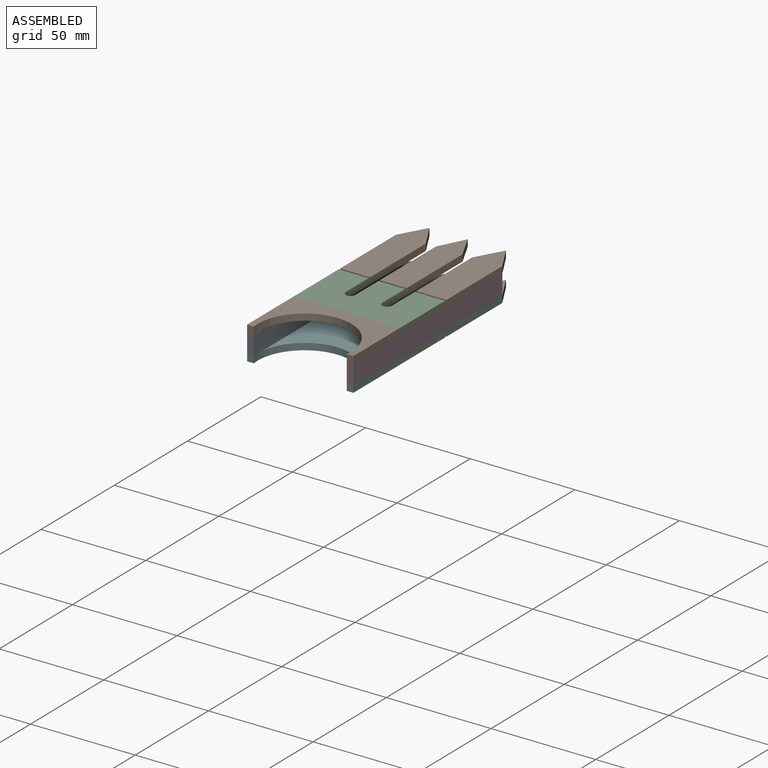
[diagram: assembled view]
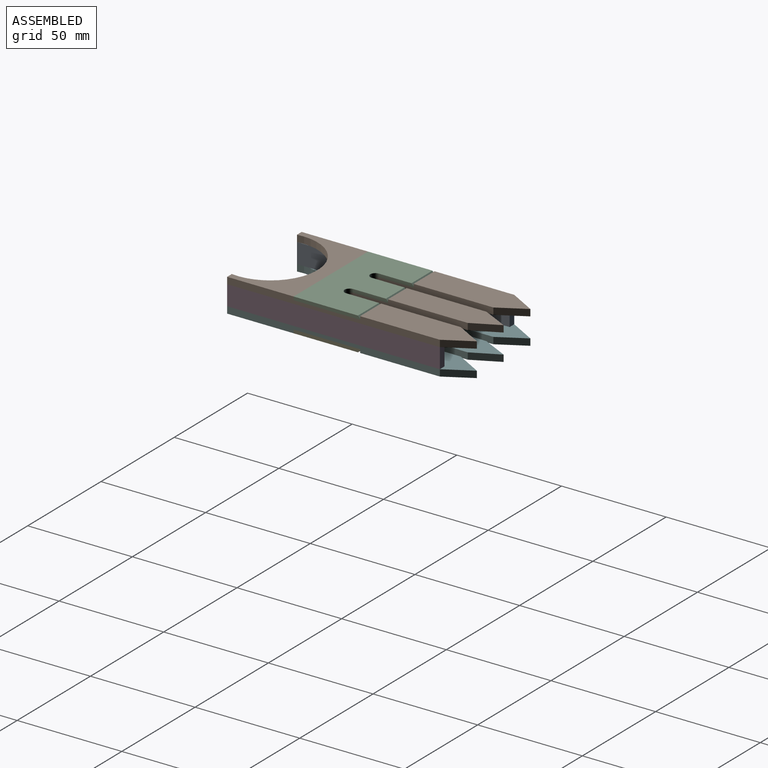
[diagram: assembled view, second angle]
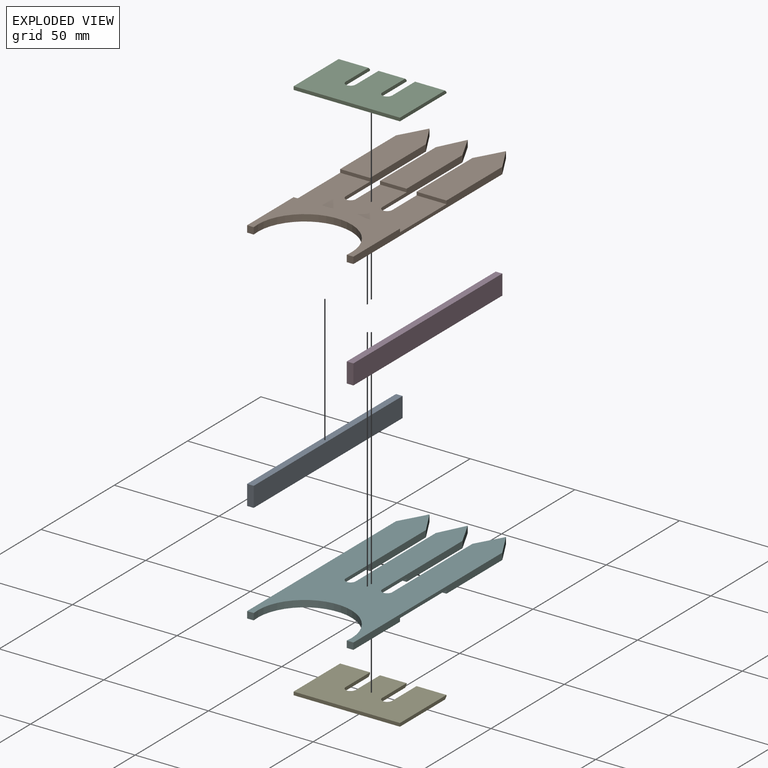
[diagram: exploded view]
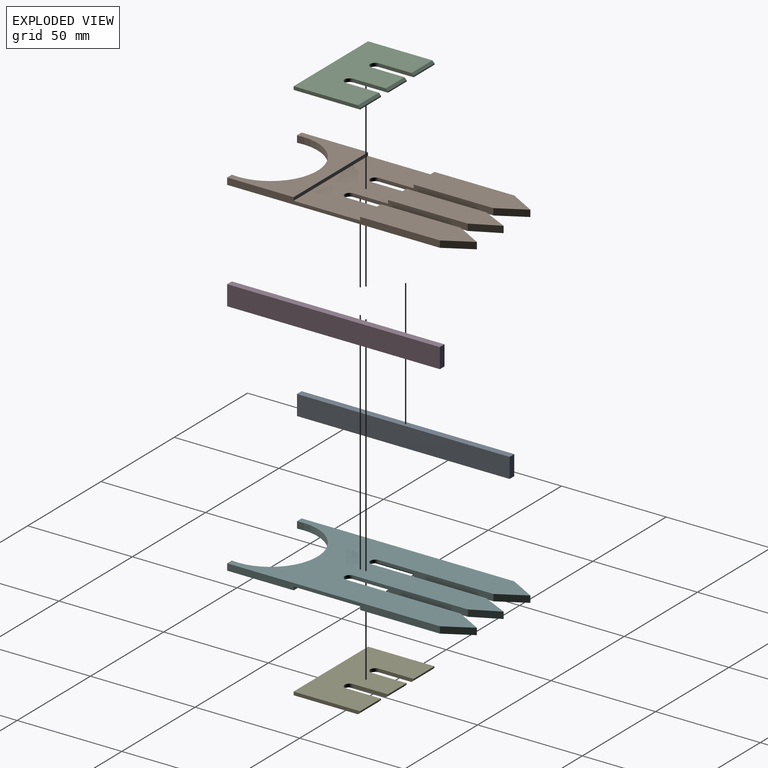
[diagram: exploded view, second angle]
ASSEMBLY  parts=6 mates=5
PART A: 6 faces, bbox 3.2x101.6x9.5 mm
  f0: plane 101.6x9.53mm, normal (-1,0,0), area 967.7mm2, adj f1,f3,f4,f5
  f1: plane 9.53x3.18mm, normal (0,-1,0), area 30.2mm2, adj f0,f2,f4,f5
  f2: plane 101.6x9.53mm, normal (1,0,0), area 967.7mm2, adj f1,f3,f4,f5
  f3: plane 9.53x3.18mm, normal (0,1,0), area 30.2mm2, adj f0,f2,f4,f5
  f4: plane 101.6x3.18mm, normal (0,0,1), area 322.6mm2, adj f0,f1,f2,f3
  f5: plane 101.6x3.18mm, normal (0,0,-1), area 322.6mm2, adj f0,f1,f2,f3
PART B: 29 faces, bbox 50.8x114.3x3.2 mm
  f0: plane 3.18x3.18mm, normal (0,-1,0), area 10.1mm2, adj f3,f4,f6,f24
  f1: plane 50.8x14.29mm, normal (0,0,1), area 635.1mm2, adj f8,f13,f15,f16,f20
  f2: plane 50.8x12.7mm, normal (0,0,1), area 564.5mm2, adj f10,f11,f14,f17,f19
  f3: plane 50.8x31.75mm, normal (0,0,1), area 690mm2, adj f0,f4,f7,f8,f22,f24
  f4: plane 101.6x3.18mm, normal (-1,0,0), area 272.2mm2, adj f0,f3,f5,f6,f18,f21,f22,f23
  f5: plane 50.8x14.29mm, normal (0,0,1), area 635.1mm2, adj f4,f9,f12,f18,f21
  f6: plane 114.3x50.8mm, normal (0,0,-1), area 3961.7mm2, adj f0,f4,f7,f8,f9,f10,f11,f12
  f7: plane 3.18x3.18mm, normal (0,-1,0), area 10.1mm2, adj f3,f6,f8,f24
  f8: plane 101.6x3.18mm, normal (1,0,0), area 272.2mm2, adj f1,f3,f6,f7,f13,f20,f22,f23
  f9: plane 54.61x3.18mm, normal (1,0,0), area 147.2mm2, adj f5,f6,f12,f21,f23,f28
  f10: plane 54.61x3.18mm, normal (-1,0,0), area 147.2mm2, adj f2,f6,f11,f19,f23,f27
  f11: plane 12.7x6.35mm, normal (-0.89,0.45,0), area 45.1mm2, adj f2,f6,f10,f17
  f12: plane 12.7x7.14mm, normal (0.87,0.49,0), area 46.3mm2, adj f5,f6,f9,f18
  f13: plane 12.7x7.14mm, normal (0.87,0.49,0), area 46.3mm2, adj f1,f6,f8,f16
  f14: plane 54.61x3.18mm, normal (1,0,0), area 147.2mm2, adj f2,f6,f17,f19,f23,f26
  f15: plane 54.61x3.18mm, normal (-1,0,0), area 147.2mm2, adj f1,f6,f16,f20,f23,f25
  f16: plane 12.7x7.14mm, normal (-0.87,0.49,0), area 46.3mm2, adj f1,f6,f13,f15
  f17: plane 12.7x6.35mm, normal (0.89,0.45,0), area 45.1mm2, adj f2,f6,f11,f14
  f18: plane 12.7x7.14mm, normal (-0.87,0.49,0), area 46.3mm2, adj f4,f5,f6,f12
  f19: plane 12.7x1.59mm, normal (0,-1,0), area 20.2mm2, adj f2,f10,f14,f23
  f20: plane 14.29x1.59mm, normal (0,-1,0), area 22.7mm2, adj f1,f8,f15,f23
  f21: plane 14.29x1.59mm, normal (0,-1,0), area 22.7mm2, adj f4,f5,f9,f23
  f22: plane 50.8x1.59mm, normal (0,1,0), area 80.6mm2, adj f3,f4,f8,f23
  f23: plane 50.8x31.75mm, normal (0,0,1), area 1437mm2, adj f4,f8,f9,f10,f14,f15,f19,f20
  f24: cylinder r=22.42mm len=44.85mm, axis (0,0,1), area 242.6mm2, adj f0,f3,f6,f7
  f25: cylinder r=2.54mm len=2.54mm, axis (0,0,1), area 6.1mm2, adj f6,f15,f23,f26
  f26: cylinder r=2.54mm len=2.54mm, axis (0,0,-1), area 6.1mm2, adj f6,f14,f23,f25
  f27: cylinder r=2.54mm len=2.54mm, axis (0,0,1), area 6.1mm2, adj f6,f10,f23,f28
  f28: cylinder r=2.54mm len=2.54mm, axis (0,0,-1), area 6.1mm2, adj f6,f9,f23,f27
PART C: 19 faces, bbox 50.8x31.8x1.6 mm
  f0: plane 31.75x1.59mm, normal (-1,0,0), area 49.9mm2, adj f1,f9,f10,f11,f12
  f1: plane 50.8x1.59mm, normal (0,-1,0), area 80.6mm2, adj f0,f2,f10,f11
  f2: plane 31.75x1.59mm, normal (1,0,0), area 49.9mm2, adj f1,f3,f10,f11,f14
  f3: plane 14.29x0.57mm, normal (0,1,0), area 8.2mm2, adj f2,f4,f11,f14
  f4: plane 16.51x1.59mm, normal (-1,0,0), area 25.7mm2, adj f3,f10,f11,f14,f18
  f5: plane 16.51x1.59mm, normal (1,0,0), area 25.7mm2, adj f6,f10,f11,f13,f17
  f6: plane 12.7x0.57mm, normal (0,1,0), area 7.3mm2, adj f5,f7,f11,f13
  f7: plane 16.51x1.59mm, normal (-1,0,0), area 25.7mm2, adj f6,f10,f11,f13,f15
  f8: plane 16.51x1.59mm, normal (1,0,0), area 25.7mm2, adj f9,f10,f11,f12,f16
  f9: plane 14.29x0.57mm, normal (0,1,0), area 8.2mm2, adj f0,f8,f11,f12
  f10: plane 50.8x30.73mm, normal (0,0,1), area 1395.1mm2, adj f0,f1,f2,f4,f5,f7,f8,f12
  f11: plane 50.8x31.75mm, normal (0,0,-1), area 1437mm2, adj f0,f1,f2,f3,f4,f5,f6,f7
  f12: plane 14.29x1.02mm, normal (0,0.71,0.71), area 20.5mm2, adj f0,f8,f9,f10
  f13: plane 12.7x1.02mm, normal (0,0.71,0.71), area 18.2mm2, adj f5,f6,f7,f10
  f14: plane 14.29x1.02mm, normal (0,0.71,0.71), area 20.5mm2, adj f2,f3,f4,f10
  f15: cylinder r=2.54mm len=2.54mm, axis (0,0,-1), area 6.1mm2, adj f7,f10,f11,f16
  f16: cylinder r=2.54mm len=2.54mm, axis (0,0,1), area 6.1mm2, adj f8,f10,f11,f15
  f17: cylinder r=2.54mm len=2.54mm, axis (0,0,1), area 6.1mm2, adj f5,f10,f11,f18
  f18: cylinder r=2.54mm len=2.54mm, axis (0,0,-1), area 6.1mm2, adj f4,f10,f11,f17
PART D: same geometry as A
PART E: same geometry as C
PART F: same geometry as B
PLACE A t=(-27.04,-3.34,-3.81)mm
PLACE B t=(-3.23,3.01,5.72)mm
PLACE C t=(-3.23,-6.52,7.3)mm
PLACE D t=(20.59,-3.34,-3.81)mm
PLACE E rot(axis=(0,1,0),180deg) t=(-3.23,-6.52,-5.4)mm
PLACE F rot(axis=(0,1,0),180deg) t=(-3.23,3.01,-3.81)mm
MATE fastened E.f11 <-> F.f23  axis (0,0,1) through (22.17,9.36,-5.4)mm
MATE fastened F.f6 <-> D.f5  axis (0,0,1) through (22.17,47.46,-3.81)mm
MATE fastened A.f4 <-> B.f6  axis (0,0,1) through (-28.63,47.46,5.72)mm
MATE fastened D.f4 <-> B.f6  axis (0,0,1) through (22.17,47.46,5.72)mm
MATE fastened C.f11 <-> B.f23  axis (0,0,-1) through (22.17,-22.39,7.3)mm
